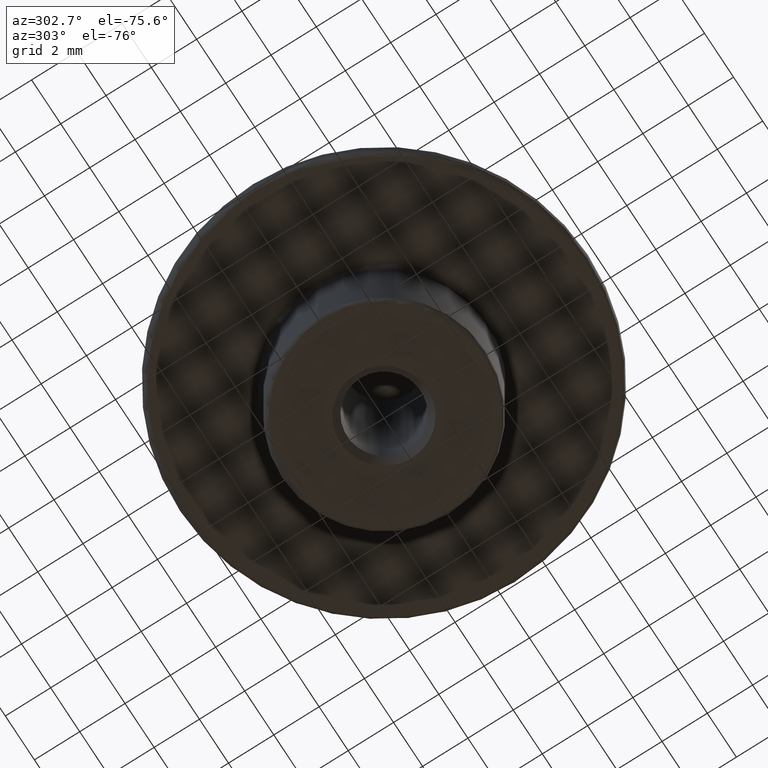
[diagram: clean part render]
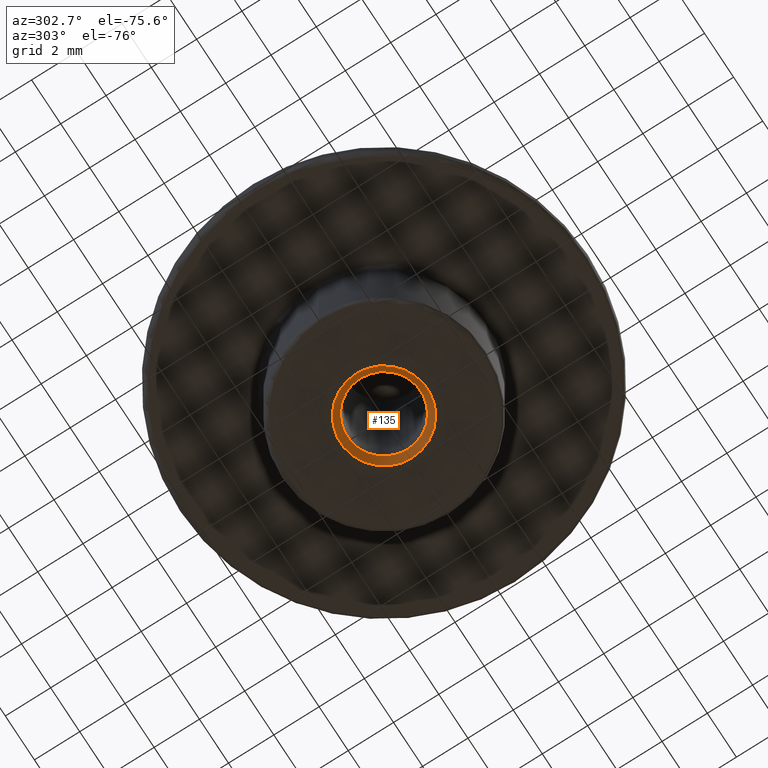
[diagram: same view with one face highlighted and labeled with its STEP entity id]
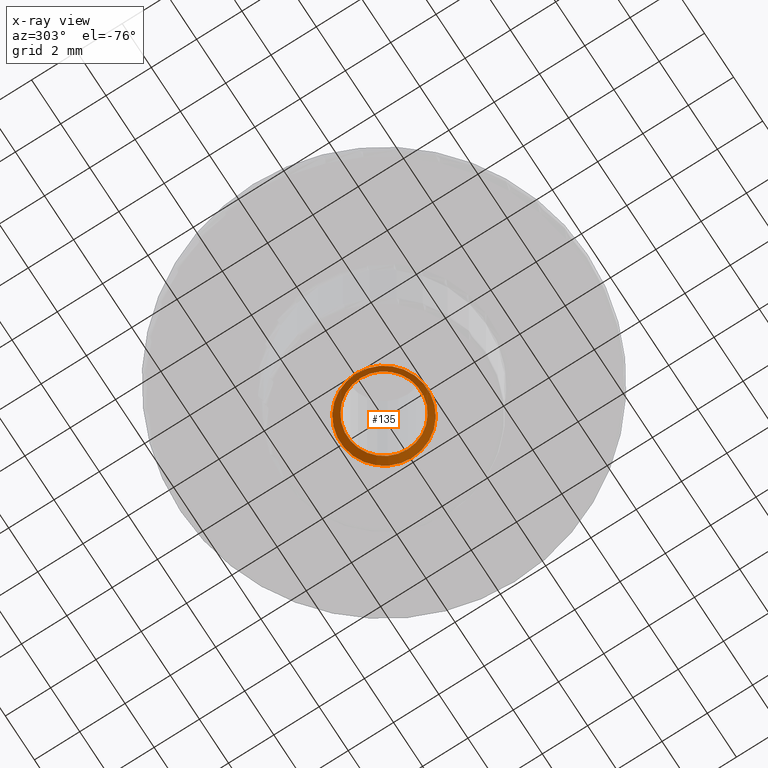
[diagram: x-ray of the same camera — body ghosted, the highlighted face saturated]
A machine part, auxiliary view. The second image highlights one B-rep face of the part: STEP entity #135.
The next image is the same camera in x-ray: the body ghosted, the highlighted face saturated — about 0% of this face is hidden behind the body in this view.
In plain terms, the highlighted conical surface has half-angle 45 deg.
Its self-contained STEP definition (entity closure, byte-faithful):
#15=CONICAL_SURFACE('',#158,1.771,45.);
#31=FACE_BOUND('',#63,.T.);
#42=FACE_OUTER_BOUND('',#62,.T.);
#62=EDGE_LOOP('',(#117));
#63=EDGE_LOOP('',(#118));
#72=CIRCLE('',#150,1.921);
#76=CIRCLE('',#159,1.621);
#83=VERTEX_POINT('',#227);
#87=VERTEX_POINT('',#240);
#94=EDGE_CURVE('',#83,#83,#72,.T.);
#98=EDGE_CURVE('',#87,#87,#76,.T.);
#117=ORIENTED_EDGE('',*,*,#98,.T.);
#118=ORIENTED_EDGE('',*,*,#94,.T.);
#135=ADVANCED_FACE('',(#42,#31),#15,.F.);
#150=AXIS2_PLACEMENT_3D('',#228,#185,#186);
#158=AXIS2_PLACEMENT_3D('',#239,#201,#202);
#159=AXIS2_PLACEMENT_3D('',#241,#203,#204);
#185=DIRECTION('center_axis',(0.,0.,-1.));
#186=DIRECTION('ref_axis',(1.,0.,0.));
#201=DIRECTION('center_axis',(0.,0.,-1.));
#202=DIRECTION('ref_axis',(1.,0.,0.));
#203=DIRECTION('center_axis',(0.,0.,1.));
#204=DIRECTION('ref_axis',(1.,0.,0.));
#227=CARTESIAN_POINT('',(-1.921,2.35254650116207E-16,2.));
#228=CARTESIAN_POINT('Origin',(0.,0.,2.));
#239=CARTESIAN_POINT('Origin',(0.,0.,2.15));
#240=CARTESIAN_POINT('',(-1.621,-1.98515246141786E-16,2.3));
#241=CARTESIAN_POINT('Origin',(0.,0.,2.3));